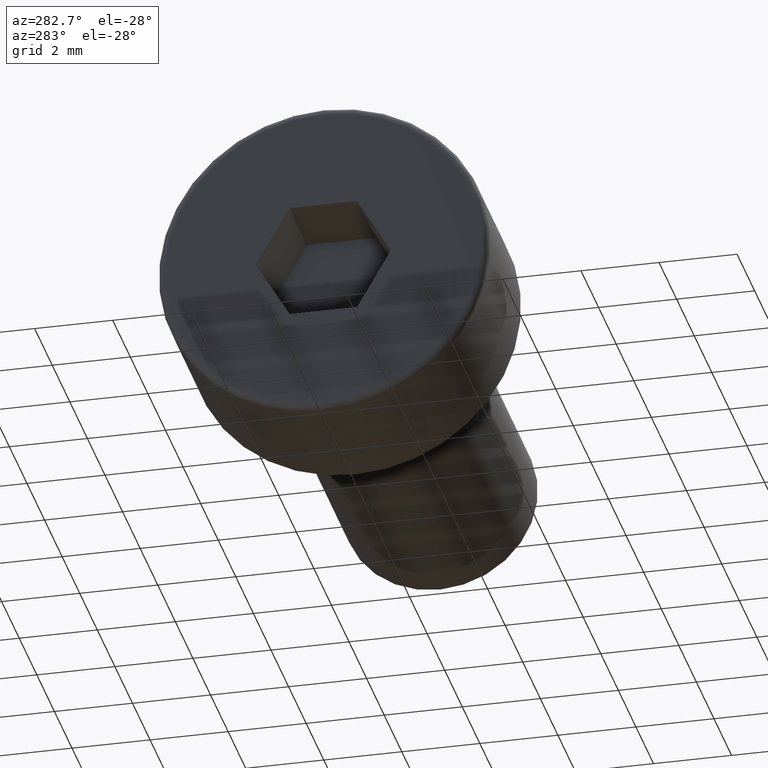
[diagram: clean part render]
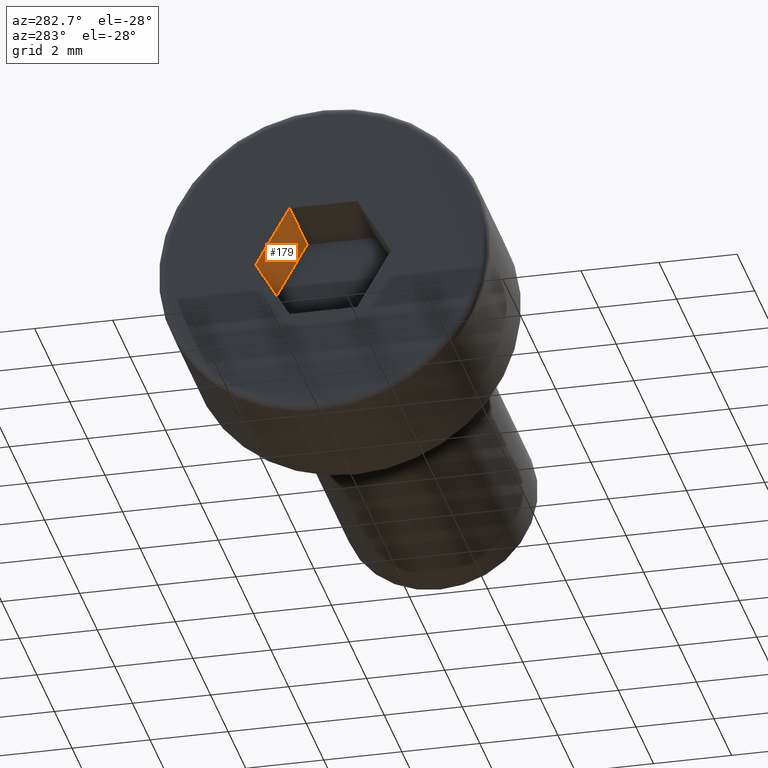
[diagram: same view with one face highlighted and labeled with its STEP entity id]
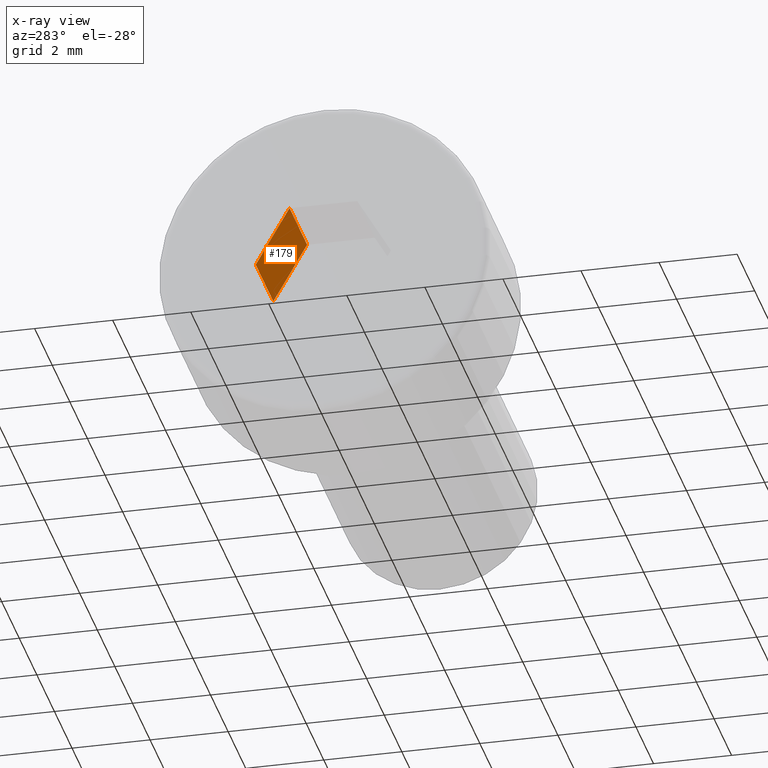
[diagram: x-ray of the same camera — body ghosted, the highlighted face saturated]
A machine part, auxiliary view. The second image highlights one B-rep face of the part: STEP entity #179.
The next image is the same camera in x-ray: the body ghosted, the highlighted face saturated — about 1% of this face is hidden behind the body in this view.
In plain terms, the highlighted planar face has unit normal (0, 0.866, 0.5).
Its self-contained STEP definition (entity closure, byte-faithful):
#77 = DIRECTION ( 'NONE',  ( -1.000000000000000000, -0.0000000000000000000, -0.0000000000000000000 ) ) ;
#81 = ORIENTED_EDGE ( 'NONE', *, *, #422, .F. ) ;
#97 = LINE ( 'NONE', #133, #439 ) ;
#130 = VERTEX_POINT ( 'NONE', #447 ) ;
#133 = CARTESIAN_POINT ( 'NONE',  ( -1.800000000000000000, 1.732050807568872500, -3.579244311116258100E-017 ) ) ;
#148 = AXIS2_PLACEMENT_3D ( 'NONE', #511, #217, #495 ) ;
#179 = ADVANCED_FACE ( 'NONE', ( #788 ), #628, .F. ) ;
#185 = VERTEX_POINT ( 'NONE', #602 ) ;
#217 = DIRECTION ( 'NONE',  ( -0.0000000000000000000, 0.8660254037844388200, 0.4999999999999998300 ) ) ;
#252 = VERTEX_POINT ( 'NONE', #660 ) ;
#303 = DIRECTION ( 'NONE',  ( -0.0000000000000000000, 0.4999999999999998300, -0.8660254037844387100 ) ) ;
#335 = EDGE_CURVE ( 'NONE', #252, #130, #752, .T. ) ;
#338 = VECTOR ( 'NONE', #372, 1000.000000000000000 ) ;
#342 = EDGE_CURVE ( 'NONE', #252, #364, #97, .T. ) ;
#364 = VERTEX_POINT ( 'NONE', #694 ) ;
#372 = DIRECTION ( 'NONE',  ( -1.000000000000000000, -0.0000000000000000000, -0.0000000000000000000 ) ) ;
#403 = VECTOR ( 'NONE', #768, 1000.000000000000000 ) ;
#405 = CARTESIAN_POINT ( 'NONE',  ( -1.800000000000000000, 0.8660254037844367100, 1.499999999999996000 ) ) ;
#422 = EDGE_CURVE ( 'NONE', #364, #185, #815, .T. ) ;
#439 = VECTOR ( 'NONE', #303, 1000.000000000000000 ) ;
#447 = CARTESIAN_POINT ( 'NONE',  ( -3.799999999999999800, 0.8660254037844367100, 1.499999999999996000 ) ) ;
#459 = CARTESIAN_POINT ( 'NONE',  ( -1.800000000000000000, 1.732050807568872500, -3.579244311116258100E-017 ) ) ;
#471 = VECTOR ( 'NONE', #77, 1000.000000000000000 ) ;
#495 = DIRECTION ( 'NONE',  ( 0.0000000000000000000, -0.4999999999999997800, 0.8660254037844387100 ) ) ;
#511 = CARTESIAN_POINT ( 'NONE',  ( -1.800000000000000000, 1.732050807568872500, -3.579244311116258100E-017 ) ) ;
#512 = ORIENTED_EDGE ( 'NONE', *, *, #335, .T. ) ;
#565 = LINE ( 'NONE', #642, #403 ) ;
#585 = ORIENTED_EDGE ( 'NONE', *, *, #342, .F. ) ;
#587 = EDGE_CURVE ( 'NONE', #130, #185, #565, .T. ) ;
#602 = CARTESIAN_POINT ( 'NONE',  ( -3.799999999999999800, 1.732050807568872500, -3.579244311116258100E-017 ) ) ;
#628 = PLANE ( 'NONE',  #148 ) ;
#642 = CARTESIAN_POINT ( 'NONE',  ( -3.799999999999999800, 1.732050807568872500, -3.579244311116258100E-017 ) ) ;
#660 = CARTESIAN_POINT ( 'NONE',  ( -1.800000000000000000, 0.8660254037844367100, 1.499999999999996000 ) ) ;
#694 = CARTESIAN_POINT ( 'NONE',  ( -1.800000000000000000, 1.732050807568872500, -3.579244311116258100E-017 ) ) ;
#707 = EDGE_LOOP ( 'NONE', ( #767, #81, #585, #512 ) ) ;
#752 = LINE ( 'NONE', #405, #471 ) ;
#767 = ORIENTED_EDGE ( 'NONE', *, *, #587, .T. ) ;
#768 = DIRECTION ( 'NONE',  ( -0.0000000000000000000, 0.4999999999999998300, -0.8660254037844387100 ) ) ;
#788 = FACE_OUTER_BOUND ( 'NONE', #707, .T. ) ;
#815 = LINE ( 'NONE', #459, #338 ) ;